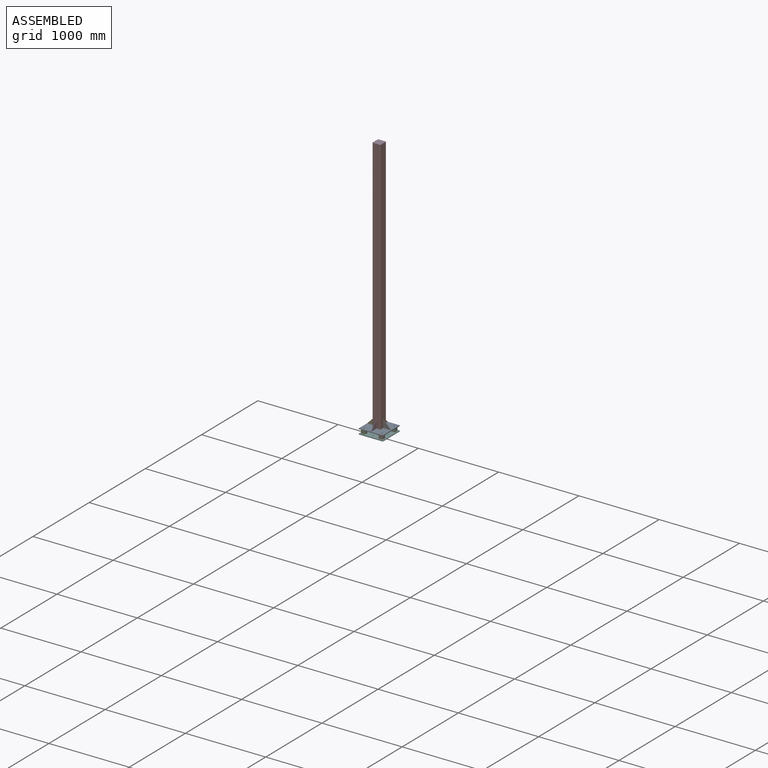
[diagram: assembled view]
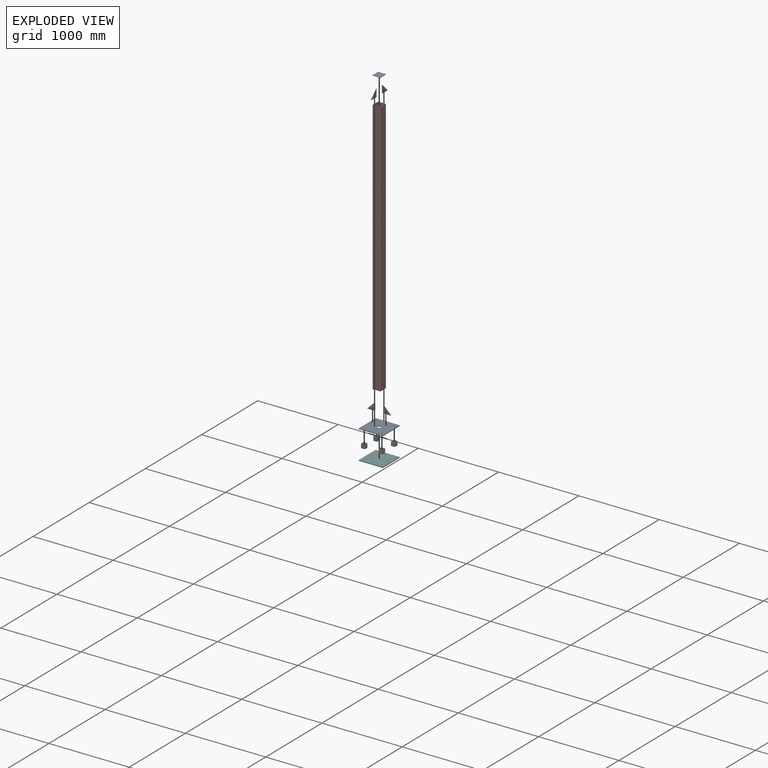
[diagram: exploded view]
GUIDED TOUR — MATED ASSEMBLY (Onshape document eb73ae1d09e5ce11387deaa5, AutoMate assembly eb73ae1d09e5ce11387deaa5_2c769380da3b7ab7fdabbcc9_dc1f5a9a4871035602151e02_default)

This assembly has 12 components, labeled P0..P11 below (a component is one placed occurrence of a part; the same part can appear more than once), held together by 11 mates. A mate is a constraint between two components; its type names the relative motion it leaves free:
  FASTENED — locks the two components together rigidly (no relative motion).
Axis/direction vectors are unit vectors and 'through' points are millimeter coordinates, both in the assembly's world frame.

MATES
  1. FASTENED "Fastened 4": P9 <-> P8, direction (0.000, 0.000, -1.000) through (15.72, 147.98, -561.65) mm
  2. FASTENED "Fastened 11": P11 <-> P8, direction (0.000, 0.000, -1.000) through (15.72, -152.02, -561.65) mm
  3. FASTENED "Fastened 7": P0 <-> P5, direction (0.000, 0.000, -1.000) through (-94.28, 107.98, -621.65) mm
  4. FASTENED "Fastened 10": P3 <-> P7, direction (0.000, 0.000, -1.000) through (15.72, -2.02, 2638.35) mm
  5. FASTENED "Fastened 3": P4 <-> P8, direction (0.000, 0.000, -1.000) through (-134.28, -2.02, -561.65) mm
  6. FASTENED "Fastened 5": P10 <-> P5, direction (0.000, 0.000, -1.000) through (-94.28, -112.02, -621.65) mm
  7. FASTENED "Fastened 8": P2 <-> P5, direction (0.000, 0.000, -1.000) through (125.72, 107.98, -621.65) mm
  8. FASTENED "Fastened 2": P6 <-> P8, direction (0.000, 0.000, -1.000) through (165.72, -2.02, -561.65) mm
  9. FASTENED "Fastened 6": P1 <-> P5, direction (0.000, 0.000, -1.000) through (125.72, -112.02, -621.65) mm
  10. FASTENED "Fastened 1": P7 <-> P8, direction (0.000, 0.000, -1.000) through (15.72, -2.02, -561.65) mm
  11. FASTENED "Fastened 9": P10 <-> P8, direction (0.000, 0.000, 1.000) through (-94.28, -112.02, -571.65) mm

ASSEMBLY ORDER
  1. P7 — the base component [order verified]
  2. P6 [order verified]
  3. P11 [order verified]
  4. P9 [order verified]
  5. P4 [order verified]
  6. P3 [order verified]
  7. P10 [order verified]
  8. P2 [order verified]
  9. P1 [order verified]
  10. P0 [order verified]
  11. P8 [order verified]
  12. P5 [order verified]
Order-tag legend:
  [order verified] — this step's position reverses a verified removal order: the component was checked to insert without passing through the ones already placed.

Of the 12 components, 1 carries the full construction recipe — the FeatureScript program that regenerates the part's solid from scratch; the rest are supplied as boundary geometry only.
Each toured component is shown spotlighted twice — in the assembled view, then in the exploded view, where a leader line traces a displaced component back to its assembled socket (saturated green if recipe-attached, orange if geometry-only; every other component desaturated gray) — followed by its recipe or geometry summary and the mates that hold it.
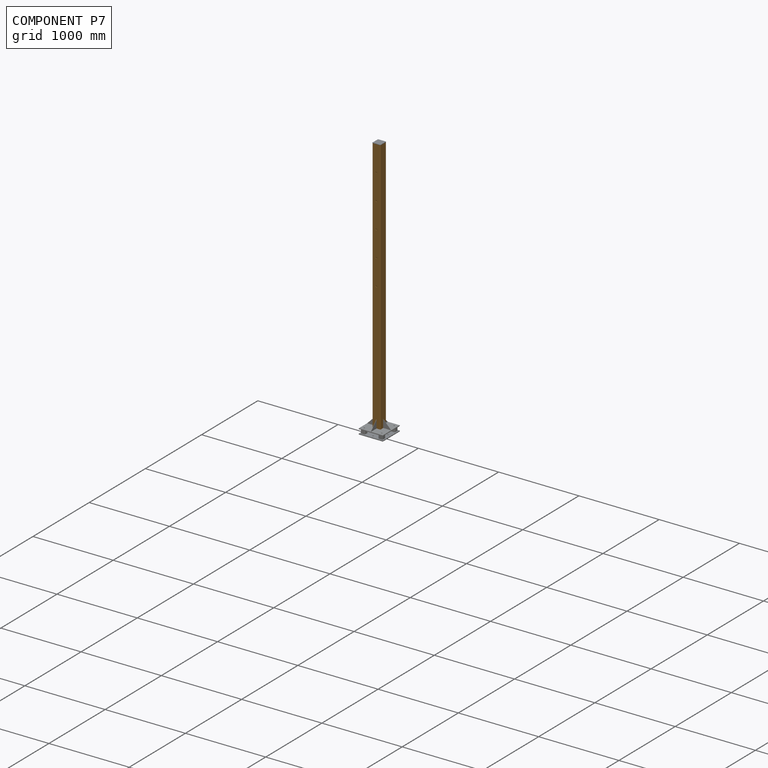
[diagram: component P7 — assembled]
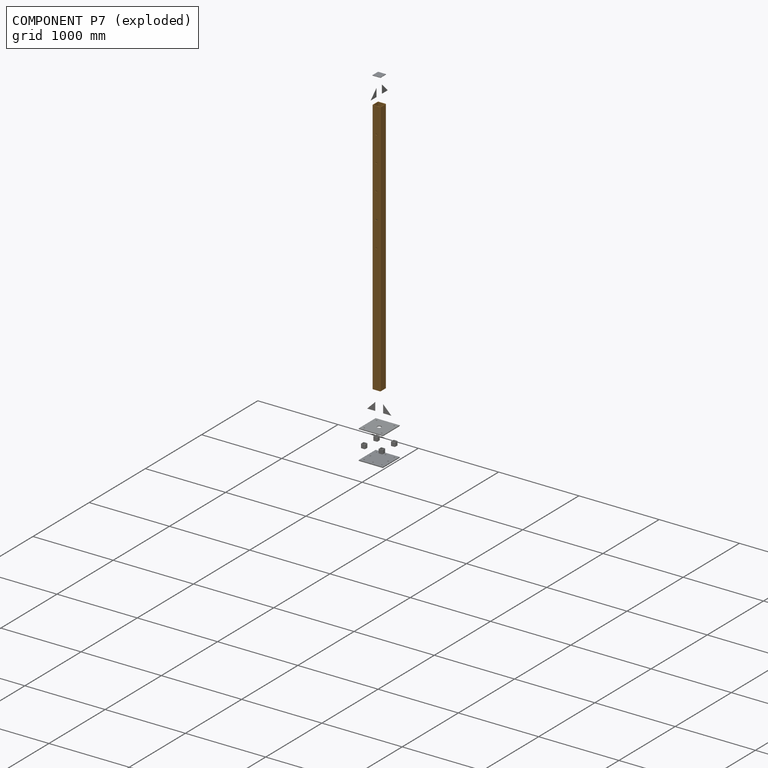
[diagram: component P7 — exploded]
COMPONENT P7 — geometry summary (no construction recipe available for this part):
  bounding box: 3200.0 x 100.0 x 100.0 mm
  B-rep topology: 1 solid, 19 faces, 102 edges
  volume: 6003473 mm^3 (19% of its bounding box)
  symmetry: 2-fold rotationally symmetric about the x axis; 2-fold rotationally symmetric about the y axis; 4-fold rotationally symmetric about the z axis; mirror-symmetric across its x mid-plane, y mid-plane, z mid-plane
Held by: FASTENED mate "Fastened 10" to P3; FASTENED mate "Fastened 1" to P8.
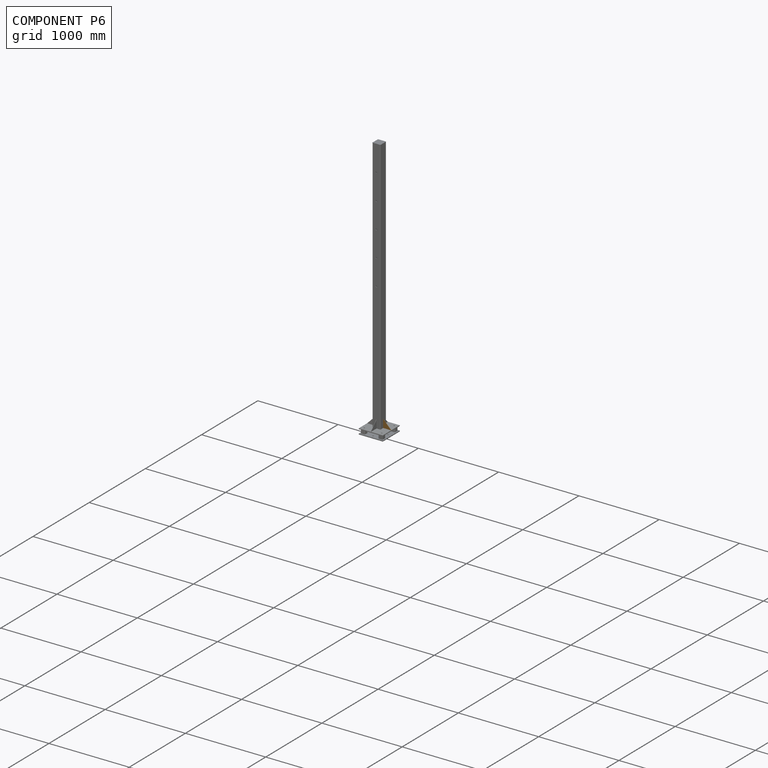
[diagram: component P6 — assembled]
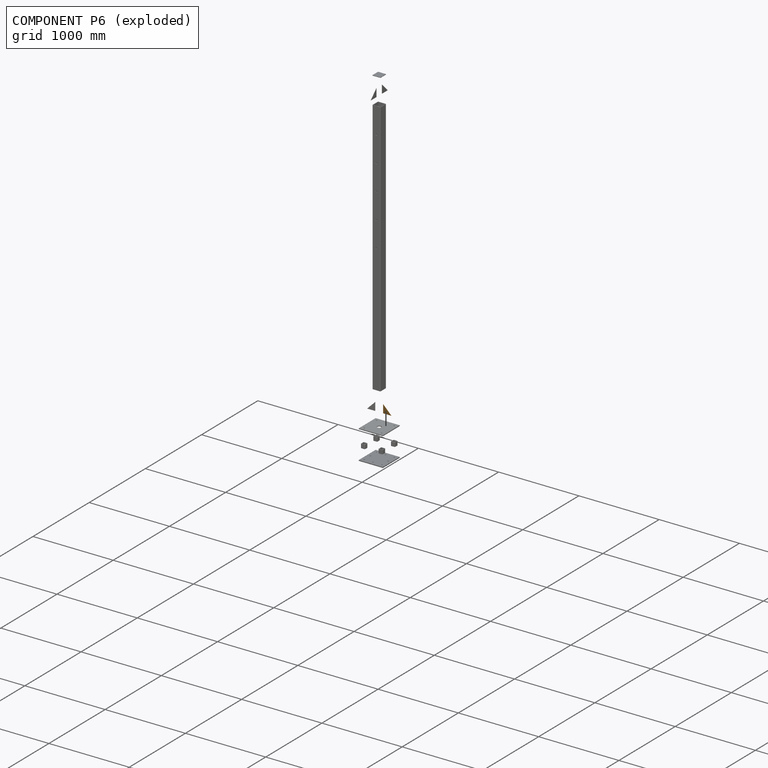
[diagram: component P6 — exploded]
COMPONENT P6 — geometry summary (no construction recipe available for this part):
  bounding box: 100.0 x 100.0 x 3.0 mm
  B-rep topology: 1 solid, 5 faces, 18 edges
  volume: 15000 mm^3 (50% of its bounding box)
  symmetry: mirror-symmetric across its z mid-plane
Held by: FASTENED mate "Fastened 2" to P8.
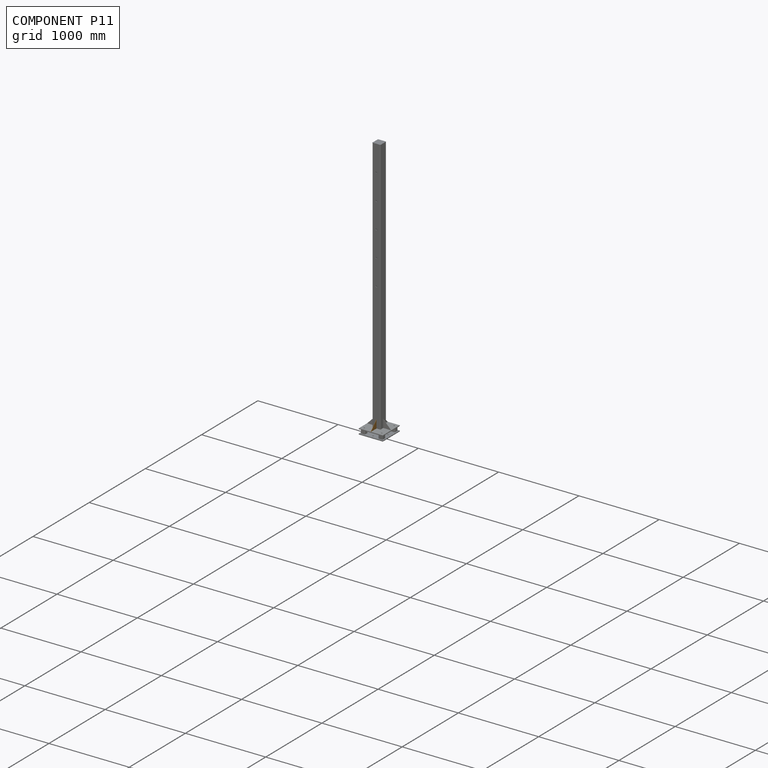
[diagram: component P11 — assembled]
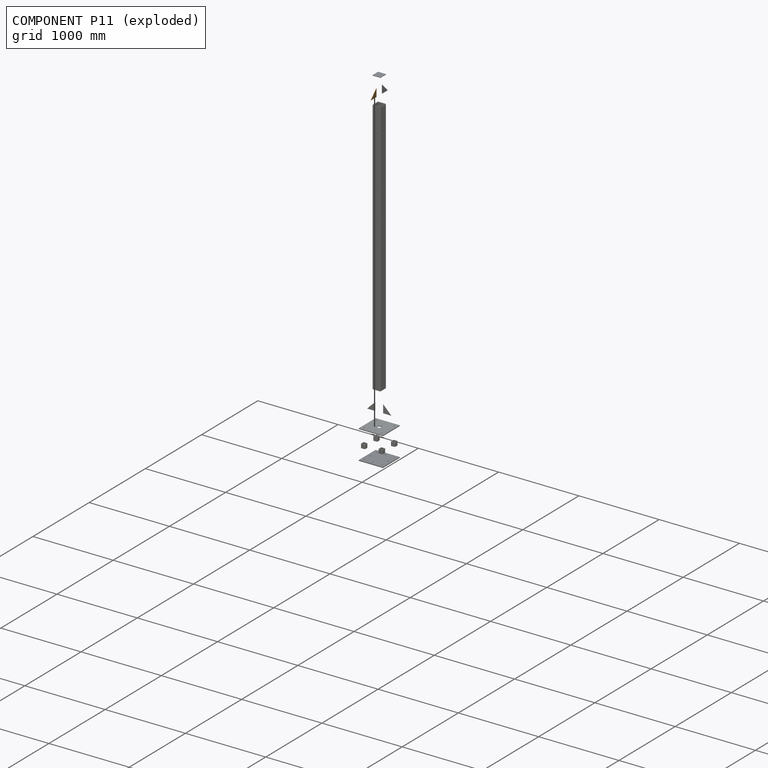
[diagram: component P11 — exploded]
COMPONENT P11 — geometry summary (no construction recipe available for this part):
  bounding box: 100.0 x 100.0 x 3.0 mm
  B-rep topology: 1 solid, 5 faces, 18 edges
  volume: 15000 mm^3 (50% of its bounding box)
  symmetry: mirror-symmetric across its z mid-plane
Held by: FASTENED mate "Fastened 11" to P8.
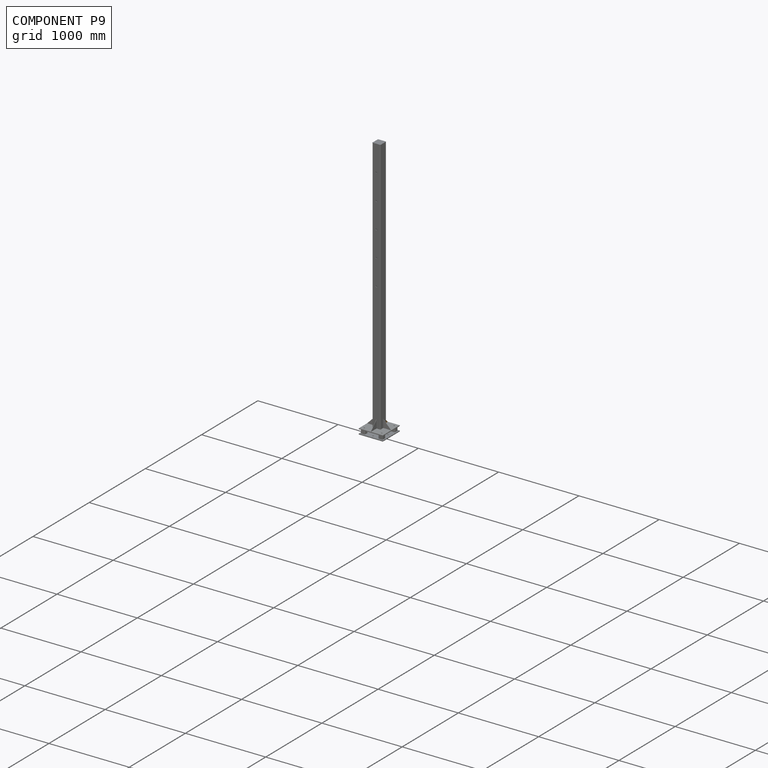
[diagram: component P9 — assembled]
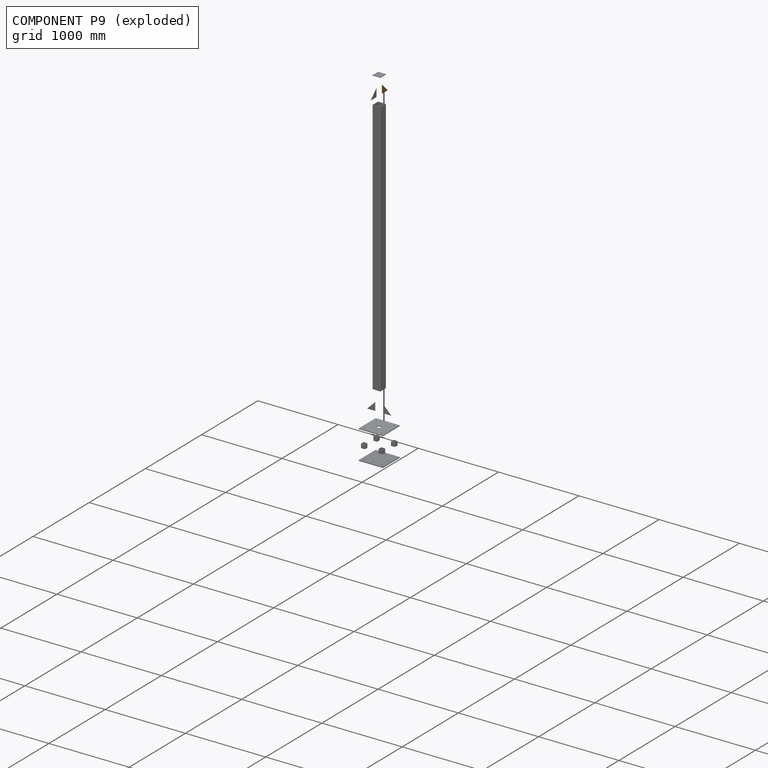
[diagram: component P9 — exploded]
COMPONENT P9 — geometry summary (no construction recipe available for this part):
  bounding box: 100.0 x 100.0 x 3.0 mm
  B-rep topology: 1 solid, 5 faces, 18 edges
  volume: 15000 mm^3 (50% of its bounding box)
  symmetry: mirror-symmetric across its z mid-plane
Held by: FASTENED mate "Fastened 4" to P8.
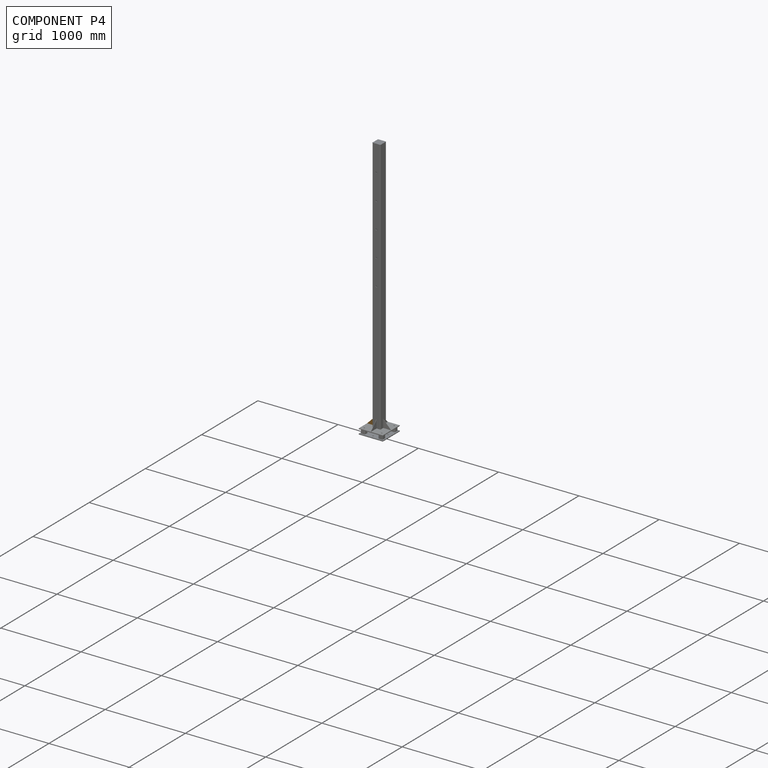
[diagram: component P4 — assembled]
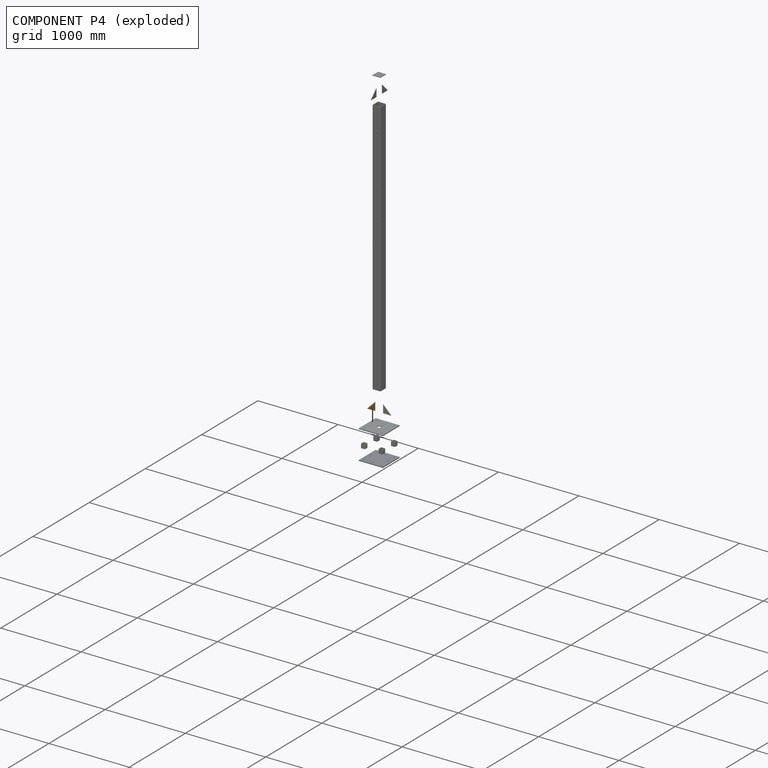
[diagram: component P4 — exploded]
COMPONENT P4 — geometry summary (no construction recipe available for this part):
  bounding box: 100.0 x 100.0 x 3.0 mm
  B-rep topology: 1 solid, 5 faces, 18 edges
  volume: 15000 mm^3 (50% of its bounding box)
  symmetry: mirror-symmetric across its z mid-plane
Held by: FASTENED mate "Fastened 3" to P8.
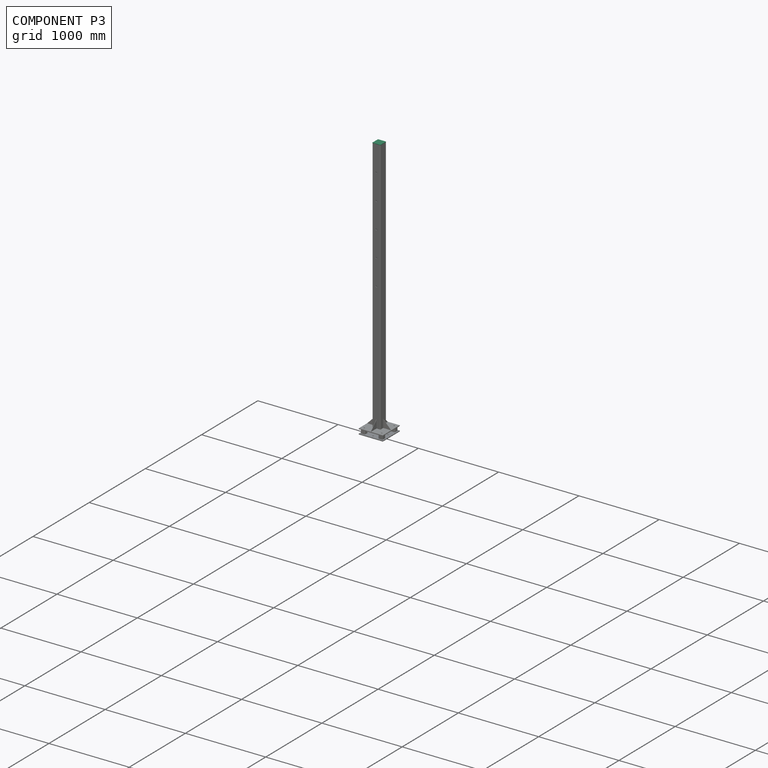
[diagram: component P3 — assembled]
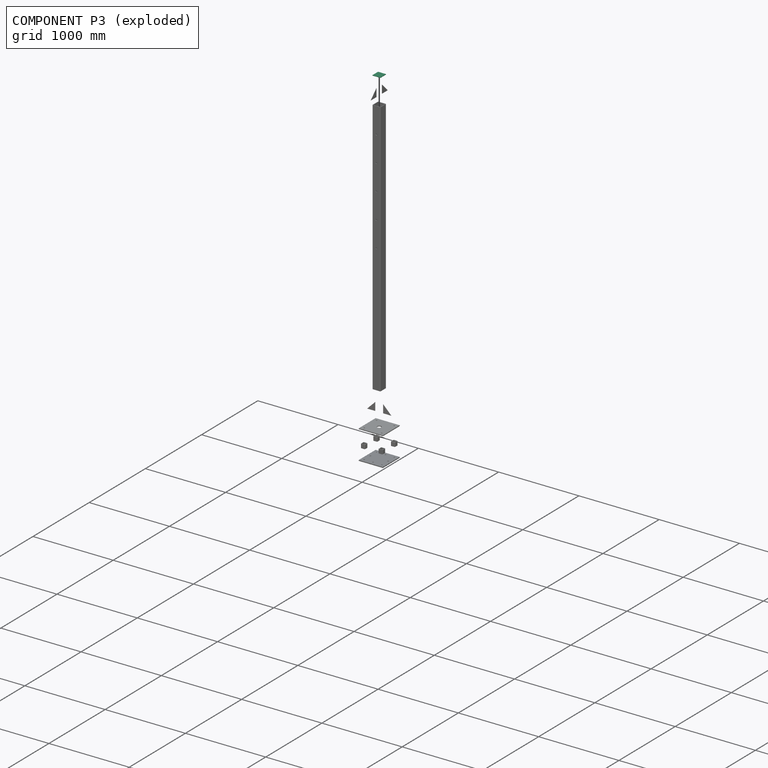
[diagram: component P3 — exploded]
COMPONENT P3 — recipe-attached (CADFS 00962861, mesh-verified: the recipe's output STEP matches this component's geometry to below the mesh-comparison resolution (tessellation chordal tolerance ~0.212 mm)).
Held by: FASTENED mate "Fastened 10" to P7.
Construction recipe (FeatureScript — the CAD program that rebuilds this solid; sketch coordinates are in the units given by the * unit suffixes, e.g. mm):

FeatureScript 1511;
import(path : "onshape/std/geometry.fs", version : "1511.0");
import(path : "onshape/std/common.fs", version : "1511.0");
const mm = millimeter;
const VERTEX = EntityType.VERTEX;
const EDGE = EntityType.EDGE;
const FACE = EntityType.FACE;
const BODY = EntityType.BODY;
function v(x, y){return vector(x, y);}
function OD(order){return orderDisambiguation(order);}
function OSD(set){return originalSetDisambiguation(set);}
function TD(topology){return topologyDisambiguation(topology);}
function TDD(query){return trueDependencyDisambiguation(query);}
function sQuery(a, b, c) {return sketchEntityQuery(a, b, c);}

annotation { "Feature Type Name" : "Feature", "Feature Type Description" : "" }
export const myFeature = defineFeature(function(context is Context, id is Id, definition is map)
    precondition{}
    {
        {
            var Q0;
            Q0=qCreatedBy(makeId("Top.planeOp"),FACE);
            var sketch = newSketch(context, id + "F0", { "sketchPlane" : qUnion([Q0])});
            skLineSegment(sketch, "E0.bottom", {"start": v(50, -50) * mm, "end": v(-50, -50) * mm});
            skLineSegment(sketch, "E0.top", {"start": v(50, 50) * mm, "end": v(-50, 50) * mm});
            skLineSegment(sketch, "E0.left", {"start": v(50, -50) * mm, "end": v(50, 50) * mm});
            skLineSegment(sketch, "E0.right", {"start": v(-50, -50) * mm, "end": v(-50, 50) * mm});
            skPoint(sketch, "E0.middle", {"position": v(0, 0) * mm});
            skSolve(sketch);
        }
        {
            var Q0;
            Q0 = qSketchRegion(id + "F0", true);
            extrude(context, id + "F1", {"entities" : qUnion([Q0]), "depth" : 5 * mm, "offsetDistance" : 25 * mm});
        }
    });
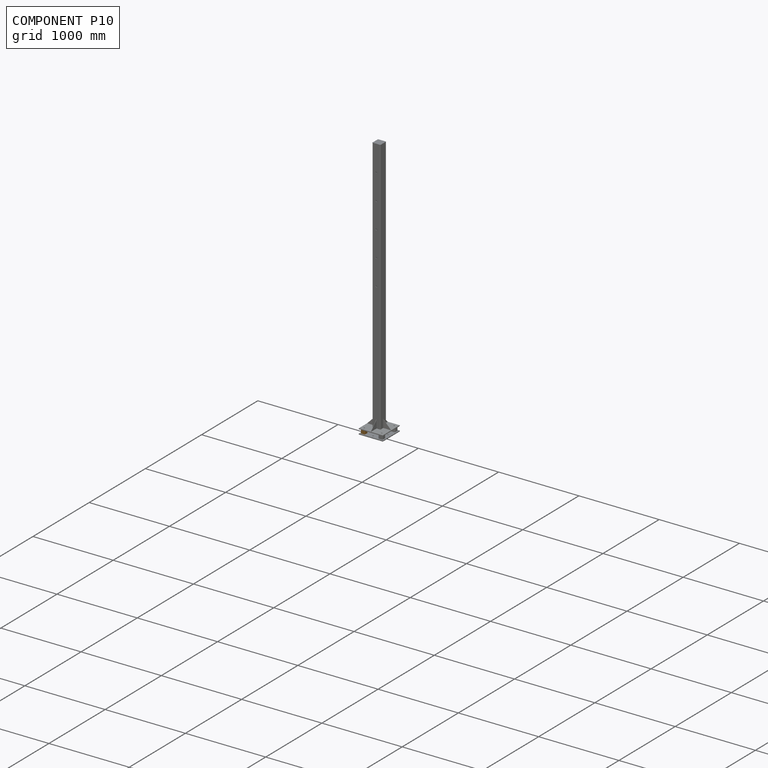
[diagram: component P10 — assembled]
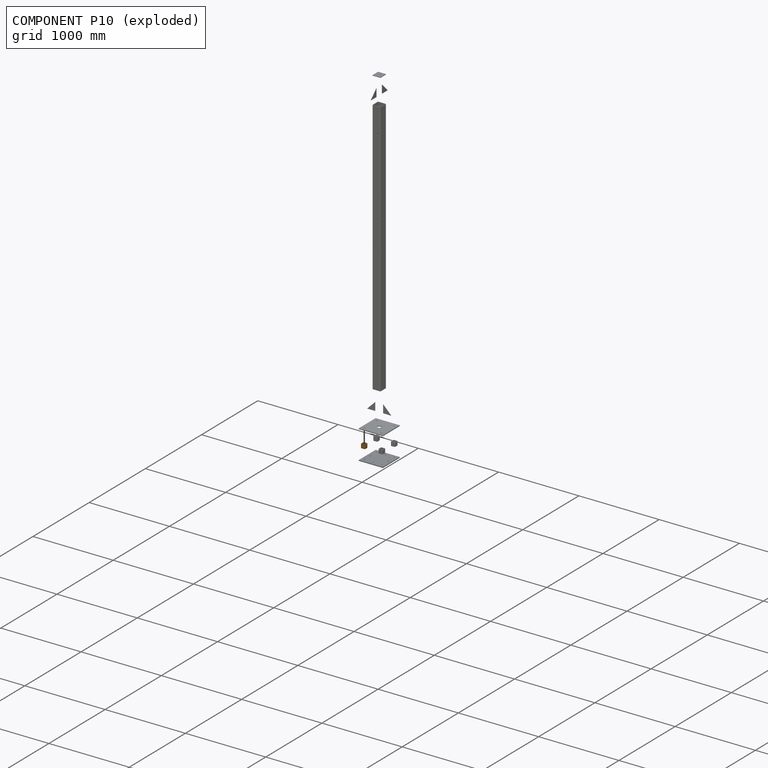
[diagram: component P10 — exploded]
COMPONENT P10 — geometry summary (no construction recipe available for this part):
  bounding box: 50.0 x 50.0 x 50.0 mm
  B-rep topology: 1 solid, 14 faces, 72 edges
  volume: 43927 mm^3 (35% of its bounding box)
  symmetry: 2-fold rotationally symmetric about the x axis; 2-fold rotationally symmetric about the y axis; 4-fold rotationally symmetric about the z axis; mirror-symmetric across its x mid-plane, y mid-plane, z mid-plane
Held by: FASTENED mate "Fastened 5" to P5; FASTENED mate "Fastened 9" to P8.
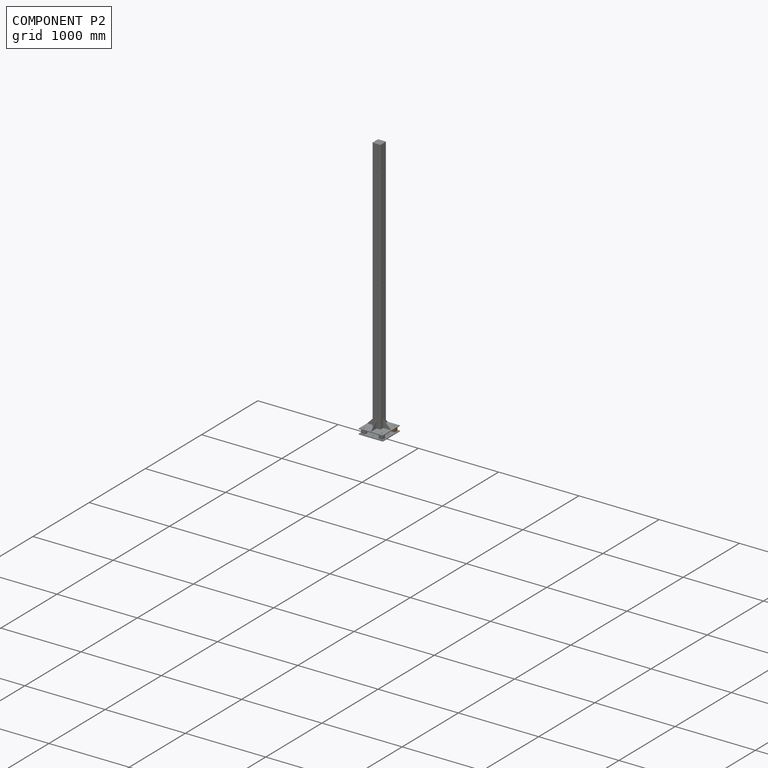
[diagram: component P2 — assembled]
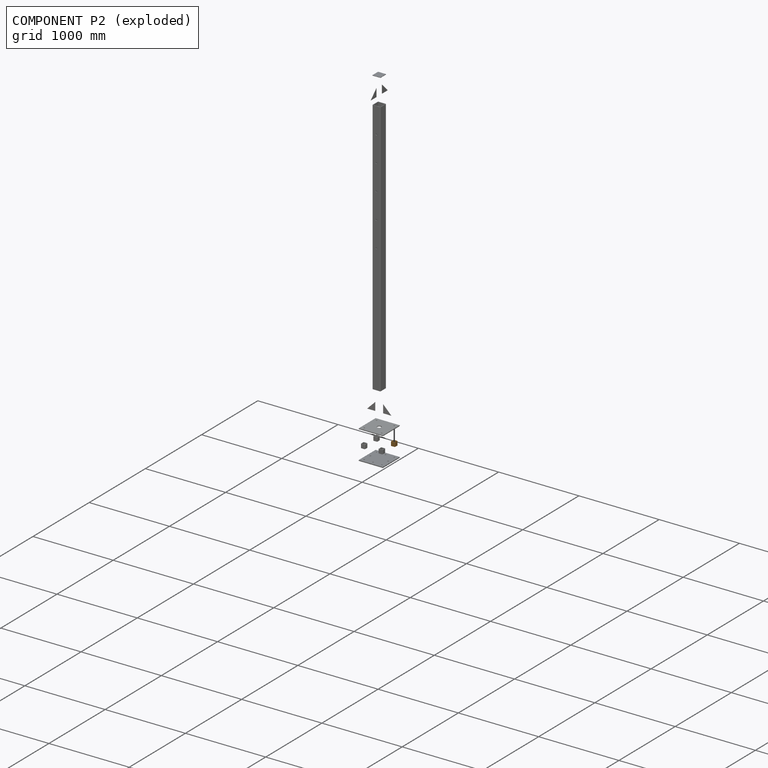
[diagram: component P2 — exploded]
COMPONENT P2 — geometry summary (no construction recipe available for this part):
  bounding box: 50.0 x 50.0 x 50.0 mm
  B-rep topology: 1 solid, 14 faces, 72 edges
  volume: 43927 mm^3 (35% of its bounding box)
  symmetry: 2-fold rotationally symmetric about the x axis; 2-fold rotationally symmetric about the y axis; 4-fold rotationally symmetric about the z axis; mirror-symmetric across its x mid-plane, y mid-plane, z mid-plane
Held by: FASTENED mate "Fastened 8" to P5.
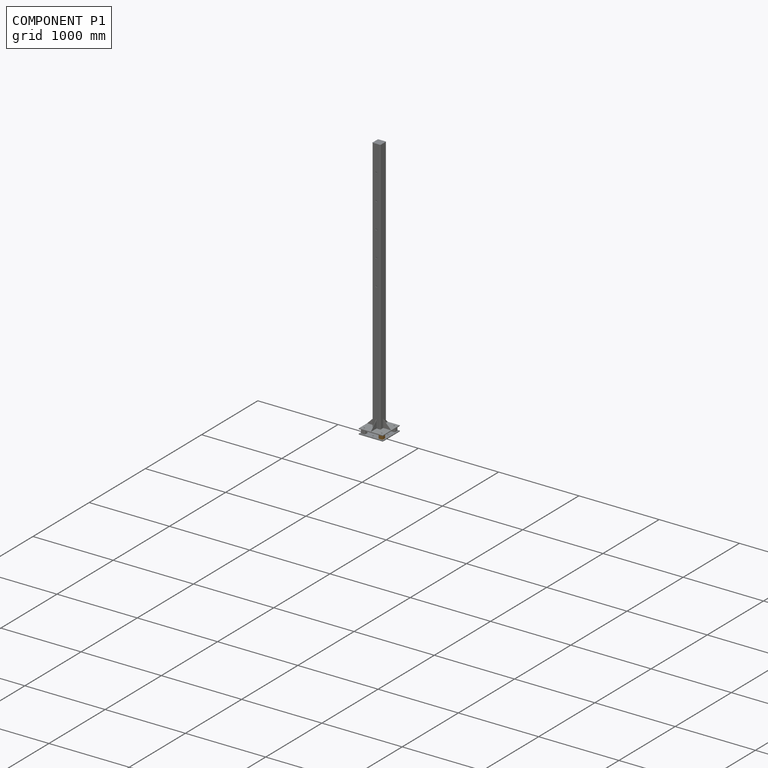
[diagram: component P1 — assembled]
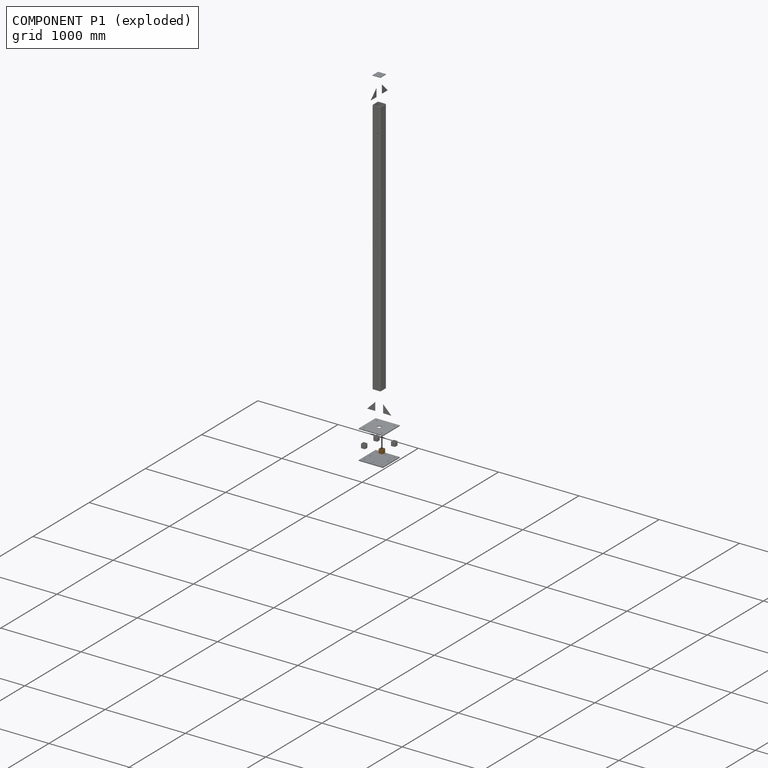
[diagram: component P1 — exploded]
COMPONENT P1 — geometry summary (no construction recipe available for this part):
  bounding box: 50.0 x 50.0 x 50.0 mm
  B-rep topology: 1 solid, 14 faces, 72 edges
  volume: 43927 mm^3 (35% of its bounding box)
  symmetry: 2-fold rotationally symmetric about the x axis; 2-fold rotationally symmetric about the y axis; 4-fold rotationally symmetric about the z axis; mirror-symmetric across its x mid-plane, y mid-plane, z mid-plane
Held by: FASTENED mate "Fastened 6" to P5.
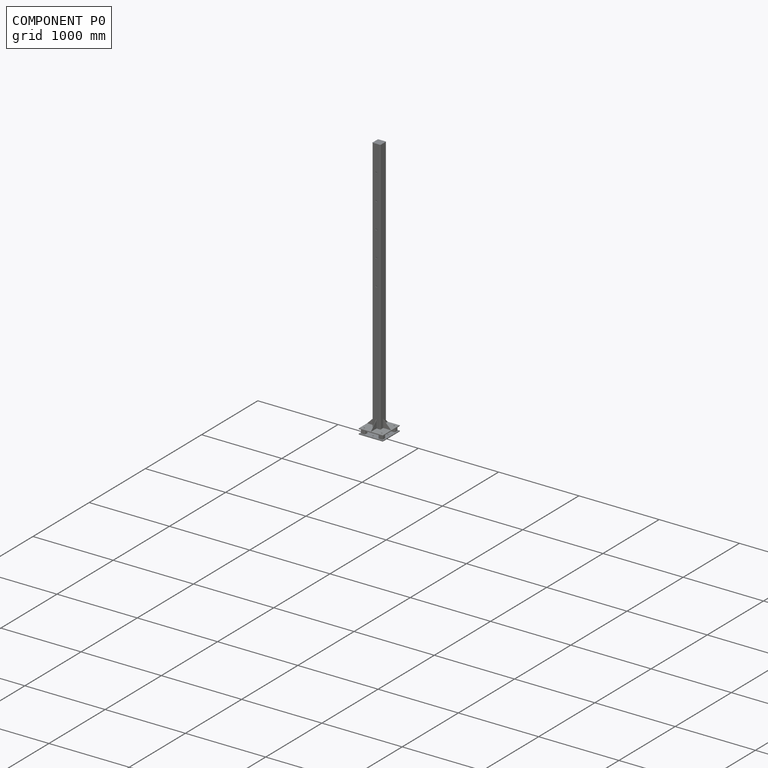
[diagram: component P0 — assembled]
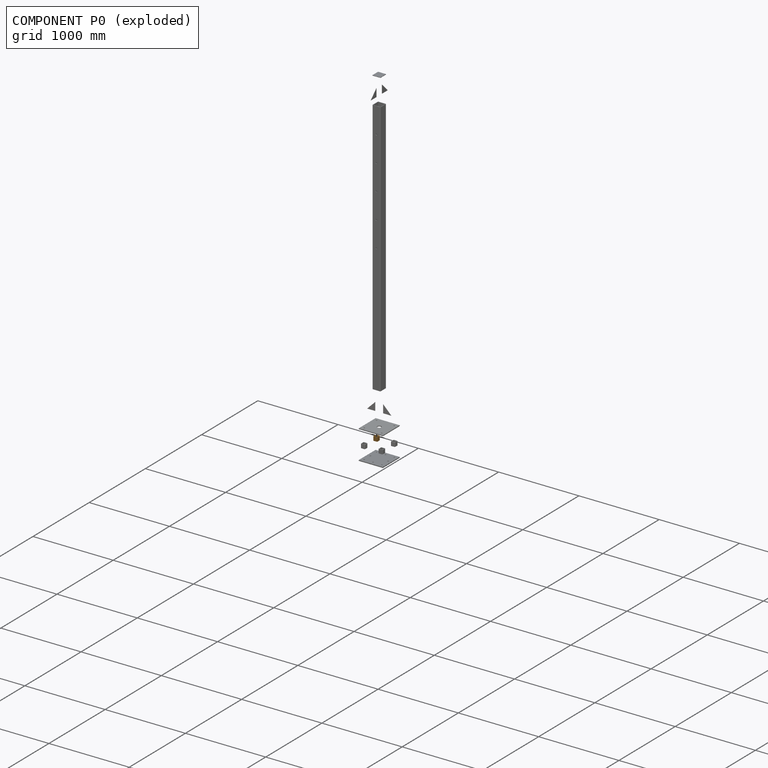
[diagram: component P0 — exploded]
COMPONENT P0 — geometry summary (no construction recipe available for this part):
  bounding box: 50.0 x 50.0 x 50.0 mm
  B-rep topology: 1 solid, 14 faces, 72 edges
  volume: 43927 mm^3 (35% of its bounding box)
  symmetry: 2-fold rotationally symmetric about the x axis; 2-fold rotationally symmetric about the y axis; 4-fold rotationally symmetric about the z axis; mirror-symmetric across its x mid-plane, y mid-plane, z mid-plane
Held by: FASTENED mate "Fastened 7" to P5.
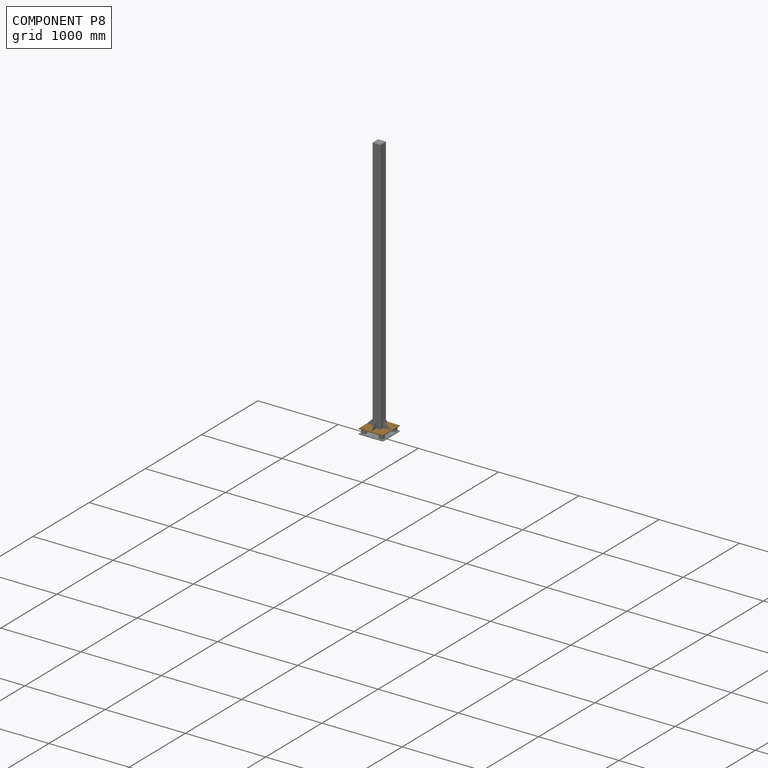
[diagram: component P8 — assembled]
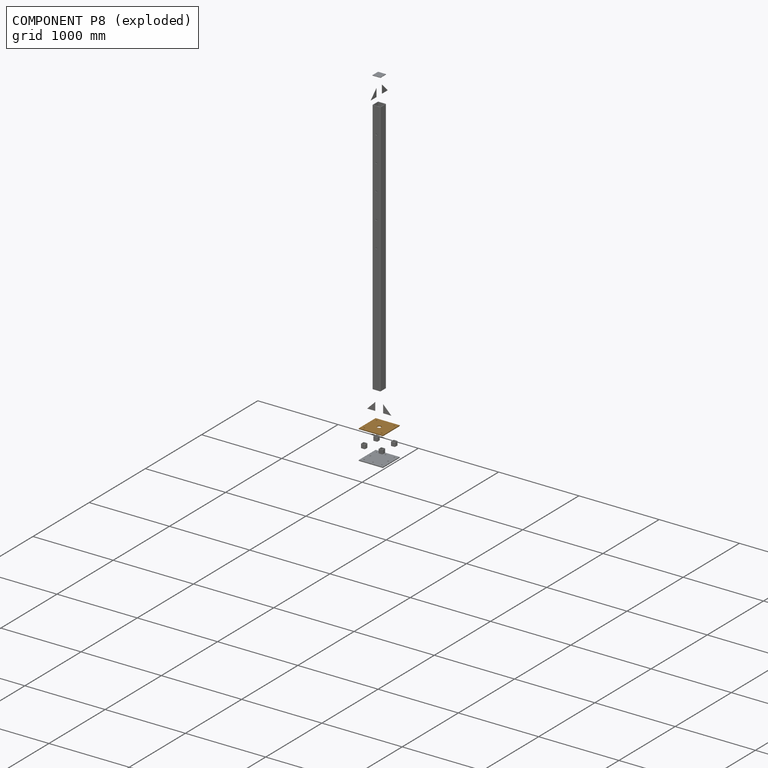
[diagram: component P8 — exploded]
COMPONENT P8 — geometry summary (no construction recipe available for this part):
  bounding box: 300.0 x 300.0 x 10.0 mm
  B-rep topology: 1 solid, 11 faces, 54 edges
  volume: 872323 mm^3 (97% of its bounding box)
  symmetry: 2-fold rotationally symmetric about the x axis; 2-fold rotationally symmetric about the y axis; 4-fold rotationally symmetric about the z axis; mirror-symmetric across its x mid-plane, y mid-plane, z mid-plane
Held by: FASTENED mate "Fastened 4" to P9; FASTENED mate "Fastened 11" to P11; FASTENED mate "Fastened 3" to P4; FASTENED mate "Fastened 2" to P6; FASTENED mate "Fastened 1" to P7; FASTENED mate "Fastened 9" to P10.
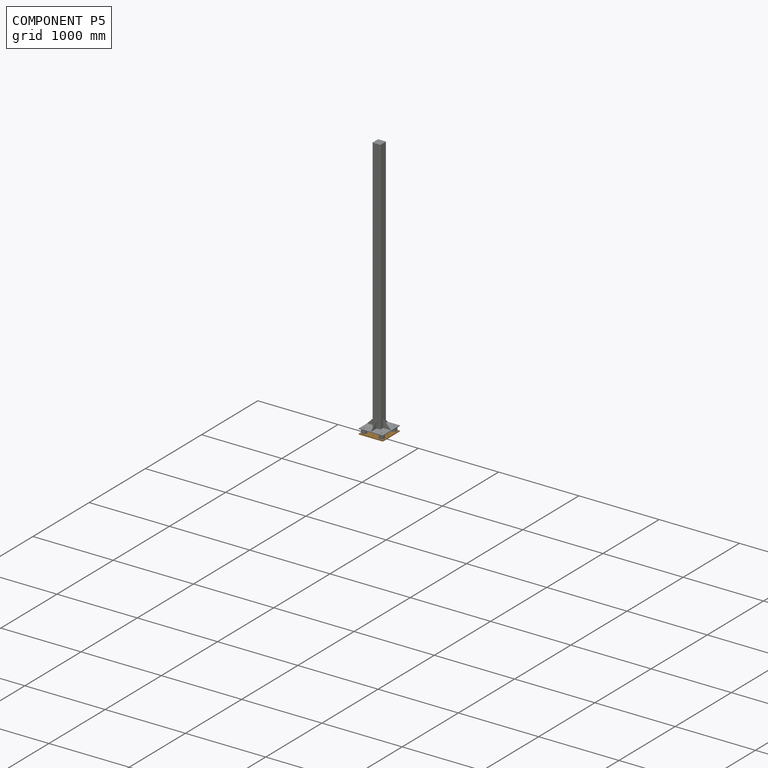
[diagram: component P5 — assembled]
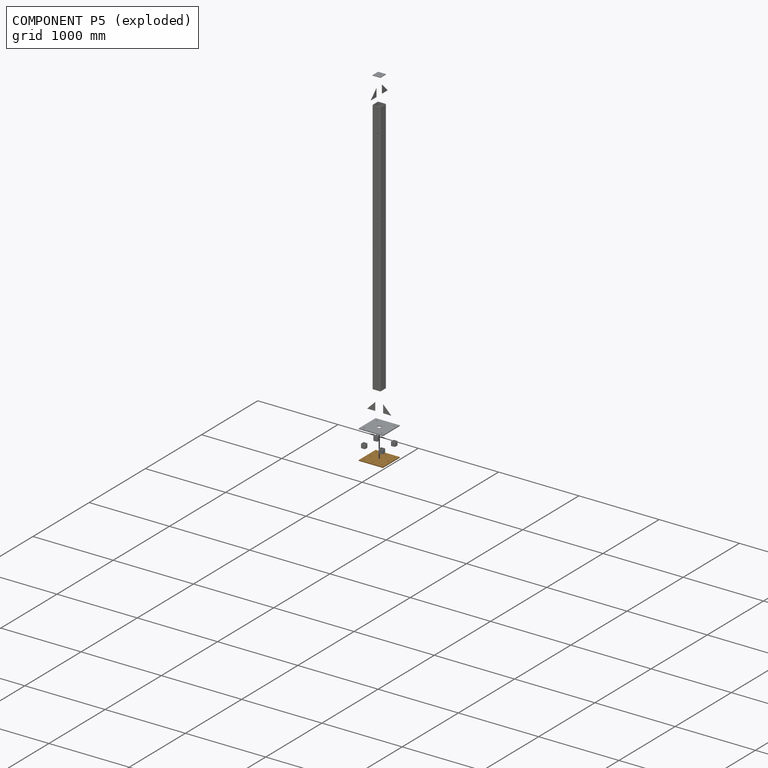
[diagram: component P5 — exploded]
COMPONENT P5 — geometry summary (no construction recipe available for this part):
  bounding box: 300.0 x 300.0 x 10.0 mm
  B-rep topology: 1 solid, 14 faces, 80 edges
  volume: 885352 mm^3 (98% of its bounding box)
  symmetry: 2-fold rotationally symmetric about the x axis; 2-fold rotationally symmetric about the y axis; 4-fold rotationally symmetric about the z axis; mirror-symmetric across its x mid-plane, y mid-plane, z mid-plane
Held by: FASTENED mate "Fastened 7" to P0; FASTENED mate "Fastened 5" to P10; FASTENED mate "Fastened 8" to P2; FASTENED mate "Fastened 6" to P1.
PROVENANCE & LICENSES
Assembly (occurrences, transforms, mates, per-part STEP geometry): AutoMate dataset, Zenodo record 7776208, CC0.
Construction recipes: CADFS (HuggingFace VladPyatov/CADFS, CC-BY-4.0, layered over the ABC dataset), FeatureScript reconstruction programs keyed by ABC model id.
Join: ABC meta listings map ABC model id -> Onshape documentId; within a shared document, parts are matched by geometric signature (bounding-box dims + volume at 0.1% relative tolerance, exact B-rep face/solid counts).
Verification: 1 of this assembly's 12 components carries a recipe attachment, and every attachment is mesh-verified: the CADFS STEP and the AutoMate member STEP were compared as meshes in their shared local frame (symmetric sampled-point-to-mesh distance); worst across the 1 attachment: below the mesh-comparison resolution (tessellation chordal tolerance ~0.212 mm) on a 142 mm part.
Renders: orthographic iso camera (az 35 / el 25); the floor grid conveys scale (grid pitch printed in each image; no ruler). In the exploded view each component is displaced by its stored offset vector: the offsets alone carry the explosion direction (mate normal/axis signs are not orientation cues and do not encode it), and separation distances are assigned per mate-chain, not proportionally to assembly-order depth.
